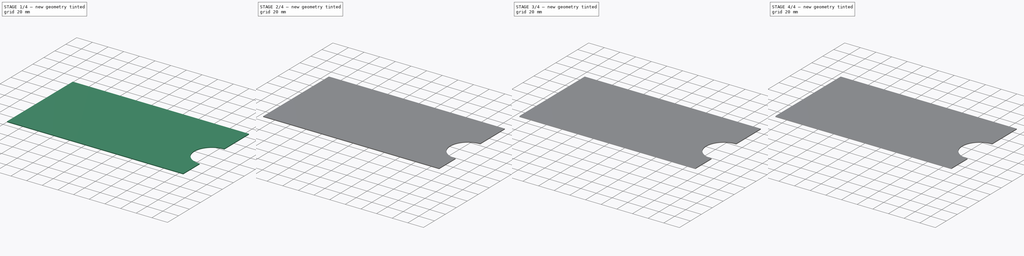
[diagram: build sequence overview — one tinted view per stage of 4, left to right]
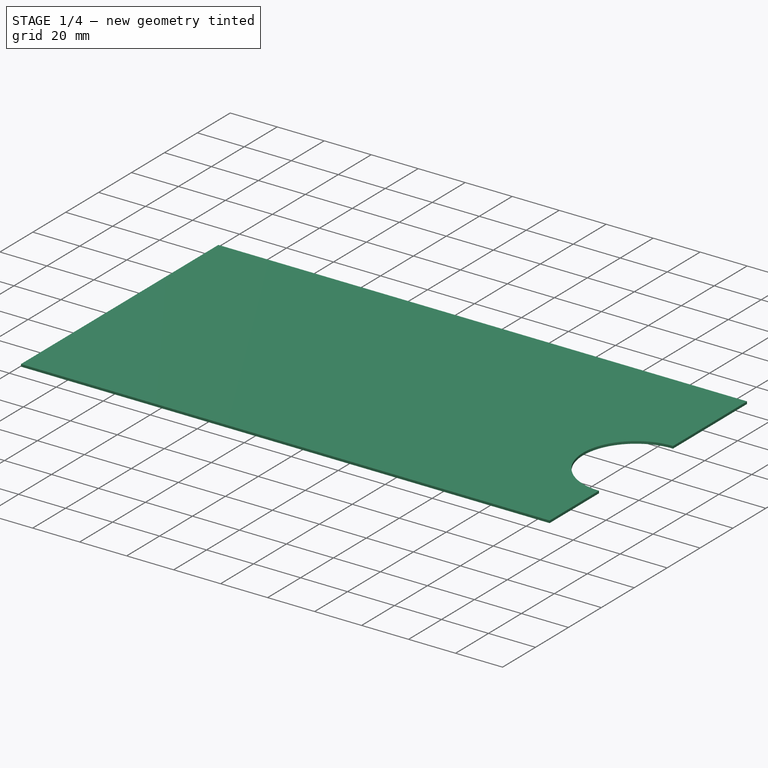
[diagram: stage 1 of 4 — iso view after this stage's code; geometry added in this stage tinted green]
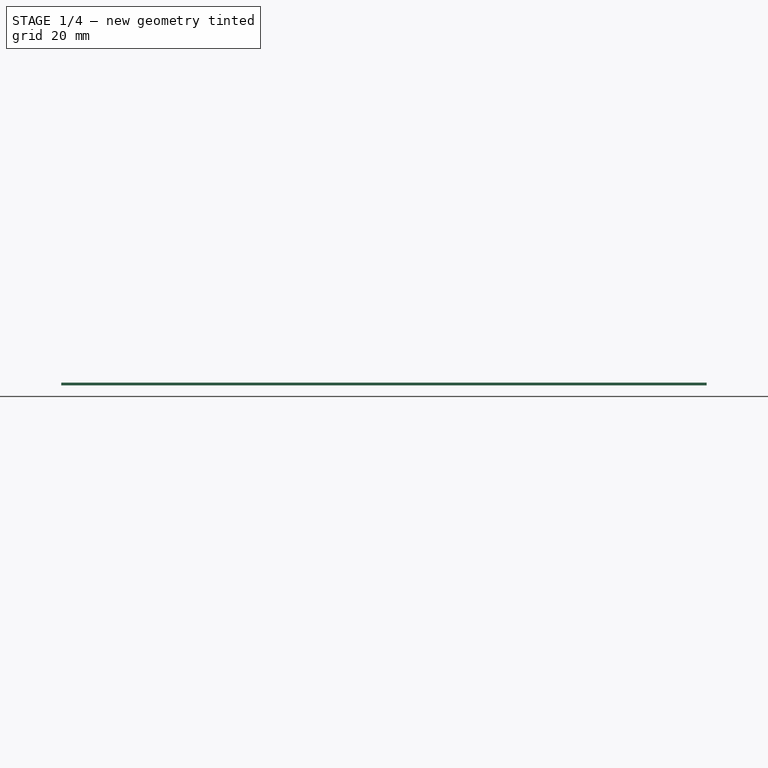
[diagram: stage 1 of 4 — front view after this stage's code; geometry added in this stage tinted green]
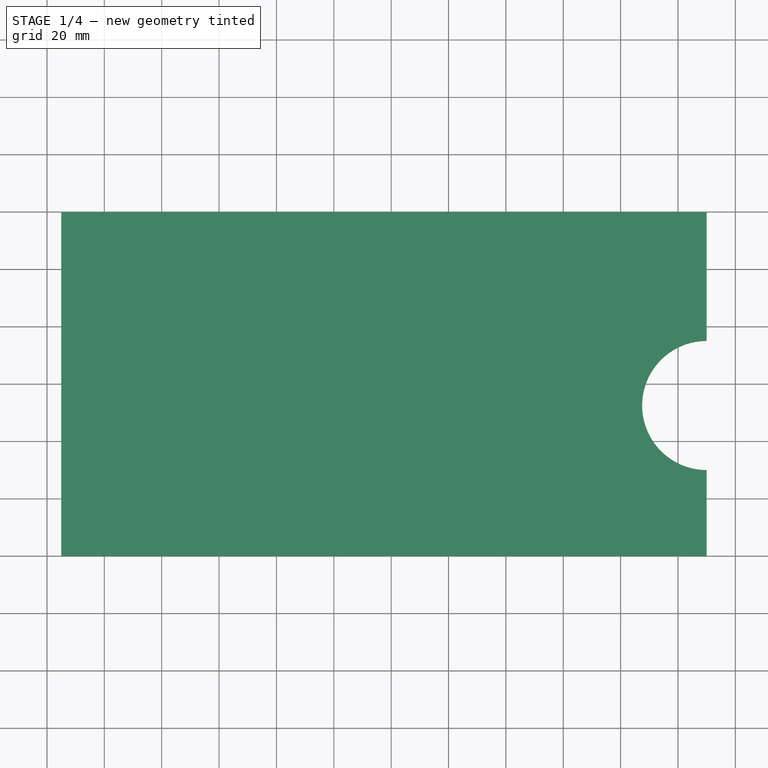
[diagram: stage 1 of 4 — top view after this stage's code; geometry added in this stage tinted green]
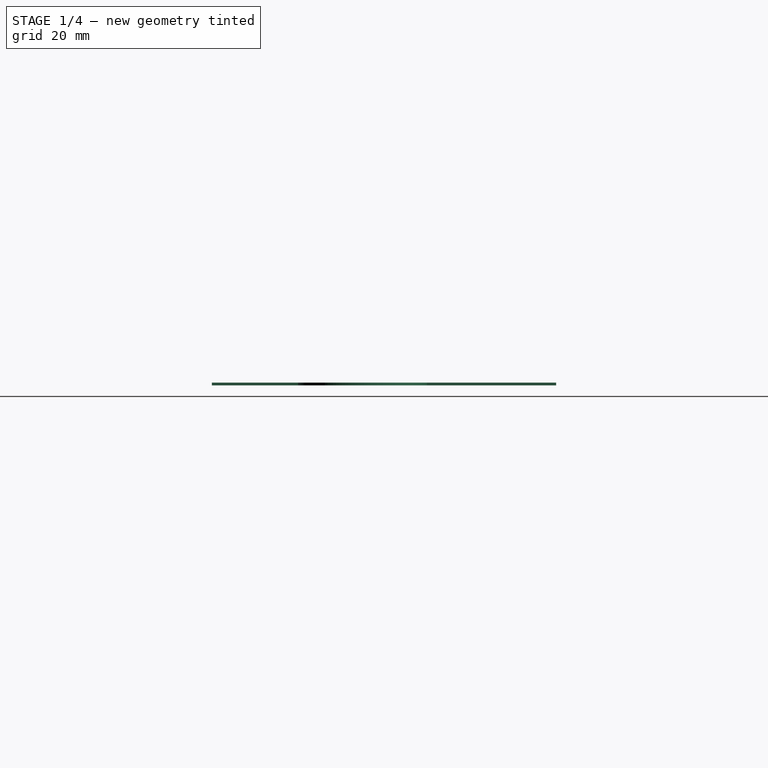
[diagram: stage 1 of 4 — right view after this stage's code; geometry added in this stage tinted green]
FCSTD DOCUMENT  (FreeCAD 1.0R39109 (Git))
Label: waterCollector
License: All rights reserved
LicenseURL: https://en.wikipedia.org/wiki/All_rights_reserved
objects: PartDesign::SubtractiveBox×3, PartDesign::Pad×2, PartDesign::Fillet×2, Sketcher::SketchObject×1, PartDesign::Thickness×1, PartDesign::Chamfer×1, PartDesign::Body×1
note: 30 computed .brp shape members not serialized (recipe doc carries the construction recipe); baked Part::Feature solids carry a one-line shape summary decoded from their .brp

FEATURE [Sketcher::SketchObject] Sketch
  ArcFitTolerance = 1e-06
  AttachmentSupport = -> [XY_Plane]
  FullyConstrained = false
  MakeInternals = false
  MapMode = 5
  sketch-geometry (54):
    g0: LineSegment StartX=0 StartY=0 StartZ=0 EndX=125 EndY=0 EndZ=0
    g1: LineSegment StartX=125 StartY=280 StartZ=0 EndX=0 EndY=280 EndZ=0
    g2: LineSegment StartX=0 StartY=280 StartZ=0 EndX=0 EndY=0 EndZ=0
    g3: LineSegment StartX=125 StartY=280 StartZ=0 EndX=125 EndY=190 EndZ=0
    g4: LineSegment StartX=125 StartY=190 StartZ=0 EndX=350 EndY=190 EndZ=0
    g5: LineSegment StartX=350 StartY=280 StartZ=0 EndX=125 EndY=280 EndZ=0
    g6: LineSegment StartX=350 StartY=190 StartZ=0 EndX=622.431 EndY=190 EndZ=0
    g7: LineSegment StartX=622.431 StartY=190 StartZ=0 EndX=622.431 EndY=280 EndZ=0
    g8: LineSegment StartX=622.431 StartY=280 StartZ=0 EndX=350 EndY=280 EndZ=0
    g9: LineSegment StartX=622.431 StartY=280 StartZ=0 EndX=622.431 EndY=0 EndZ=0
    g10: LineSegment StartX=622.431 StartY=0 StartZ=0 EndX=750 EndY=0 EndZ=0
    g11: LineSegment StartX=750 StartY=0 StartZ=0 EndX=750 EndY=280 EndZ=0
    g12: LineSegment StartX=750 StartY=280 StartZ=0 EndX=622.431 EndY=280 EndZ=0
    g13: LineSegment StartX=140 StartY=215 StartZ=0 EndX=140 EndY=205 EndZ=0
    g14: LineSegment StartX=140 StartY=205 StartZ=0 EndX=150 EndY=205 EndZ=0
    g15: LineSegment StartX=150 StartY=205 StartZ=0 EndX=150 EndY=215 EndZ=0
    g16: LineSegment StartX=150 StartY=215 StartZ=0 EndX=140 EndY=215 EndZ=0
    g17: LineSegment StartX=140 StartY=265 StartZ=0 EndX=140 EndY=255 EndZ=0
    g18: LineSegment StartX=140 StartY=255 StartZ=0 EndX=150 EndY=255 EndZ=0
    g19: LineSegment StartX=150 StartY=255 StartZ=0 EndX=150 EndY=265 EndZ=0
    g20: LineSegment StartX=150 StartY=265 StartZ=0 EndX=140 EndY=265 EndZ=0
    g21: LineSegment StartX=325 StartY=265 StartZ=0 EndX=325 EndY=255 EndZ=0
    g22: LineSegment StartX=325 StartY=255 StartZ=0 EndX=335 EndY=255 EndZ=0
    g23: LineSegment StartX=335 StartY=255 StartZ=0 EndX=335 EndY=265 EndZ=0
    g24: LineSegment StartX=335 StartY=265 StartZ=0 EndX=325 EndY=265 EndZ=0
    g25: LineSegment StartX=303.001 StartY=215 StartZ=0 EndX=303.001 EndY=205 EndZ=0
    g26: LineSegment StartX=303.001 StartY=205 StartZ=0 EndX=313.001 EndY=205 EndZ=0
    g27: LineSegment StartX=313.001 StartY=205 StartZ=0 EndX=313.001 EndY=215 EndZ=0
    g28: LineSegment StartX=313.001 StartY=215 StartZ=0 EndX=303.001 EndY=215 EndZ=0
    g29: LineSegment StartX=372.852 StartY=269.081 StartZ=0 EndX=372.852 EndY=254.135 EndZ=0
    g30: LineSegment StartX=372.852 StartY=254.135 StartZ=0 EndX=387.798 EndY=254.135 EndZ=0
    g31: LineSegment StartX=387.798 StartY=254.135 StartZ=0 EndX=387.798 EndY=269.081 EndZ=0
    g32: LineSegment StartX=387.798 StartY=269.081 StartZ=0 EndX=372.852 EndY=269.081 EndZ=0
    g33: LineSegment StartX=381.659 StartY=210.365 StartZ=0 EndX=381.659 EndY=196.22 EndZ=0
    g34: LineSegment StartX=381.659 StartY=196.22 StartZ=0 EndX=394.203 EndY=196.22 EndZ=0
    g35: LineSegment StartX=394.203 StartY=196.22 StartZ=0 EndX=394.203 EndY=210.365 EndZ=0
    g36: LineSegment StartX=394.203 StartY=210.365 StartZ=0 EndX=381.659 EndY=210.365 EndZ=0
    g37: LineSegment StartX=588.5 StartY=269.348 StartZ=0 EndX=588.5 EndY=253.335 EndZ=0
    g38: LineSegment StartX=588.5 StartY=253.335 StartZ=0 EndX=600.51 EndY=253.335 EndZ=0
    g39: LineSegment StartX=600.51 StartY=253.335 StartZ=0 EndX=600.51 EndY=269.348 EndZ=0
    g40: LineSegment StartX=600.51 StartY=269.348 StartZ=0 EndX=588.5 EndY=269.348 EndZ=0
    g41: LineSegment StartX=589.834 StartY=205.561 StartZ=0 EndX=589.834 EndY=194.886 EndZ=0
    g42: LineSegment StartX=589.834 StartY=194.886 StartZ=0 EndX=601.844 EndY=194.886 EndZ=0
    g43: LineSegment StartX=601.844 StartY=194.886 StartZ=0 EndX=601.844 EndY=205.561 EndZ=0
    g44: LineSegment StartX=601.844 StartY=205.561 StartZ=0 EndX=589.834 EndY=205.561 EndZ=0
    g45: LineSegment StartX=350 StartY=235 StartZ=0 EndX=350 EndY=280 EndZ=0
    g46: LineSegment StartX=350 StartY=190 StartZ=0 EndX=125 EndY=190 EndZ=0
    g47: LineSegment StartX=125 StartY=190 StartZ=0 EndX=125 EndY=160 EndZ=0
    g48: LineSegment StartX=125 StartY=160 StartZ=0 EndX=350 EndY=160 EndZ=0
    g49: LineSegment StartX=350 StartY=160 StartZ=0 EndX=350 EndY=190 EndZ=0
    g50: LineSegment StartX=125 StartY=160 StartZ=0 EndX=125 EndY=0 EndZ=0
    g51: LineSegment [constr] StartX=350 StartY=280 StartZ=0 EndX=350 EndY=190 EndZ=0
    g52: ArcOfCircle CenterX=350 CenterY=212.5 CenterZ=0 NormalX=0 NormalY=0 NormalZ=1 AngleXU=0 Radius=22.5 StartAngle=1.5708 EndAngle=4.71239
    g53: ArcOfCircle CenterX=350 CenterY=212.5 CenterZ=0 NormalX=0 NormalY=0 NormalZ=1 AngleXU=0 Radius=22.5 StartAngle=4.71239 EndAngle=7.85398
  constraints (134):
    c: Coincident(g1,g2)
    c: Coincident(g2,g0)
    c: Horizontal(g0)
    c: Horizontal(g1)
    c: Vertical(g2)
    c: Coincident(g0,g-1)
    c: Coincident(g45,g5)
    c: Coincident(g5,g3)
    c: Vertical(g3)
    c: Horizontal(g4)
    c: Horizontal(g5)
    c: Coincident(g6,g7)
    c: Coincident(g7,g8)
    c: Vertical(g7)
    c: Horizontal(g6)
    c: Horizontal(g8)
    c: Coincident(g9,g10)
    c: Coincident(g10,g11)
    c: Coincident(g11,g12)
    c: Coincident(g12,g9)
    c: Vertical(g9)
    c: Vertical(g11)
    c: Horizontal(g10)
    c: Horizontal(g12)
    c: Coincident(g9,g7)
    c: PointOnObject(g10,g-1)
    c: Distance(g6,g8) = 90
    c: Distance(g11,g11) = 280
    c: DistanceX(g45,g11) = 400
    c: DistanceX(g1,g45) = 350
    c: Coincident(g13,g14)
    c: Coincident(g14,g15)
    c: Coincident(g15,g16)
    c: Coincident(g16,g13)
    c: Vertical(g13)
    c: Vertical(g15)
    c: Horizontal(g14)
    c: Horizontal(g16)
    c: Coincident(g17,g18)
    c: Coincident(g18,g19)
    c: Coincident(g19,g20)
    c: Coincident(g20,g17)
    c: Vertical(g19)
    c: Horizontal(g18)
    c: Horizontal(g20)
    c: Coincident(g21,g22)
    c: Coincident(g22,g23)
    c: Coincident(g23,g24)
    c: Coincident(g24,g21)
    c: Vertical(g21)
    c: Vertical(g23)
    c: Horizontal(g22)
    c: Coincident(g25,g26)
    c: Coincident(g26,g27)
    c: Coincident(g27,g28)
    c: Coincident(g28,g25)
    c: Vertical(g25)
    c: Vertical(g27)
    c: Horizontal(g28)
    c: Coincident(g29,g30)
    c: Coincident(g30,g31)
    c: Coincident(g31,g32)
    c: Coincident(g32,g29)
    c: Vertical(g29)
    c: Vertical(g31)
    c: Horizontal(g30)
    c: Horizontal(g32)
    c: Coincident(g33,g34)
    c: Coincident(g34,g35)
    c: Coincident(g35,g36)
    c: Coincident(g36,g33)
    c: Vertical(g33)
    c: Vertical(g35)
    c: Horizontal(g34)
    c: Horizontal(g36)
    c: Coincident(g37,g38)
    c: Coincident(g38,g39)
    c: Coincident(g39,g40)
    c: Coincident(g40,g37)
    c: Vertical(g37)
    c: Vertical(g39)
    c: Horizontal(g38)
    c: Horizontal(g40)
    c: Coincident(g41,g42)
    c: Coincident(g42,g43)
    c: Coincident(g43,g44)
    c: Coincident(g44,g41)
    c: Vertical(g41)
    c: Vertical(g43)
    c: Horizontal(g42)
    c: Horizontal(g44)
    c: Equal(g20,g19)
    c: Equal(g16,g18)
    c: Equal(g16,g15)
    c: Equal(g15,g24)
    c: Equal(g24,g21)
    c: Equal(g25,g28)
    c: Equal(g28,g22)
    c: Tangent(g14,g26)
    c: Tangent(g13,g17)
    c: Tangent(g20,g24)
    c: DistanceY(g19,g19) = 10
    c: Distance(g21,g5) = 15
    c: Distance(g4,g26) = 15
    c: Vertical(g45)
    c: Coincident(g46,g47)
    c: Coincident(g47,g48)
    c: Coincident(g48,g49)
    c: Coincident(g49,g46)
    c: Horizontal(g48)
    c: Vertical(g47)
    c: Vertical(g49)
    c: Coincident(g46,g6)
    c: DistanceY(g49,g49) = 30
    c: Coincident(g50,g47)
    c: Coincident(g50,g0)
    c: Vertical(g50)
    c: Coincident(g4,g6)
    c: Coincident(g3,g4)
    c: Coincident(g1,g3)
    c: Coincident(g46,g3)
    c: Distance(g13,g3) = 15
    c: Coincident(g5,g8)
    c: DistanceX(g5,g5) = 225
    c: Coincident(g51,g5)
    c: Coincident(g51,g4)
    c: Vertical(g51)
    c: PointOnObject(g52,g51)
    c: Coincident(g52,g4)
    c: Coincident(g53,g52)
    c: Coincident(g53,g4)
    c: PointOnObject(g53,g51)
    c: Coincident(g45,g52)
    c: Diameter(g53) = 45
FEATURE [PartDesign::Pad] Pad
  Direction = (0,0,1)
  Length = 1
  Length2 = 10
  Profile = -> Sketch [Edge1,Edge21,Edge18,Edge19,Edge5,Edge4,Edge13]
  ReferenceAxis = -> Sketch [N_Axis]
  Refine = true
  Suppressed = false
  Type = 0
FEATURE [PartDesign::Thickness] Thickness
  Base = -> Pad [Face7]
  BaseFeature = -> Pad
  Intersection = false
  Join = 0
  Mode = 0
  Refine = true
  Reversed = true
  SupportTransform = false
  Suppressed = false
  Value = 0
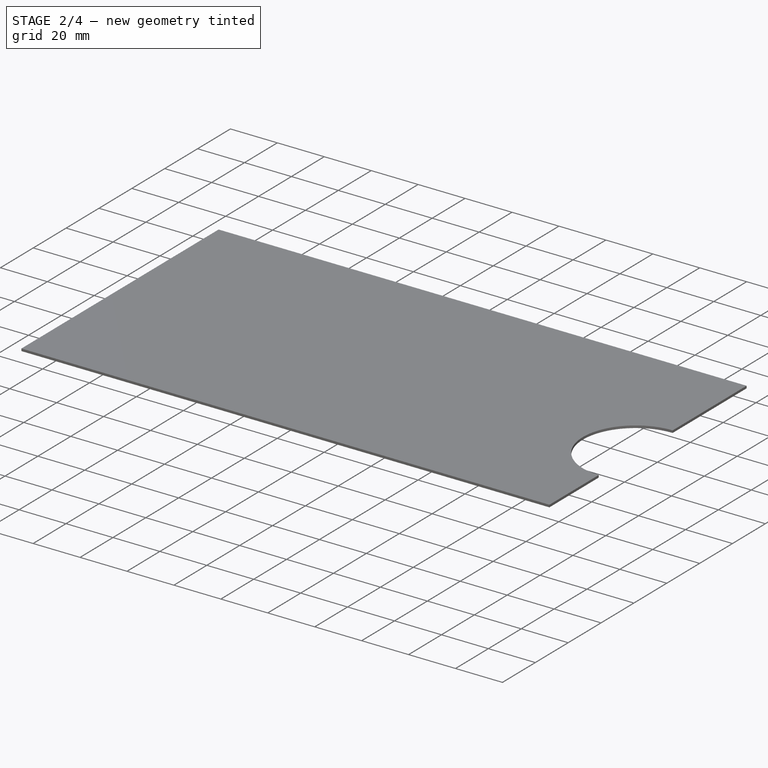
[diagram: stage 2 of 4 — iso view after this stage's code; geometry added in this stage tinted green]
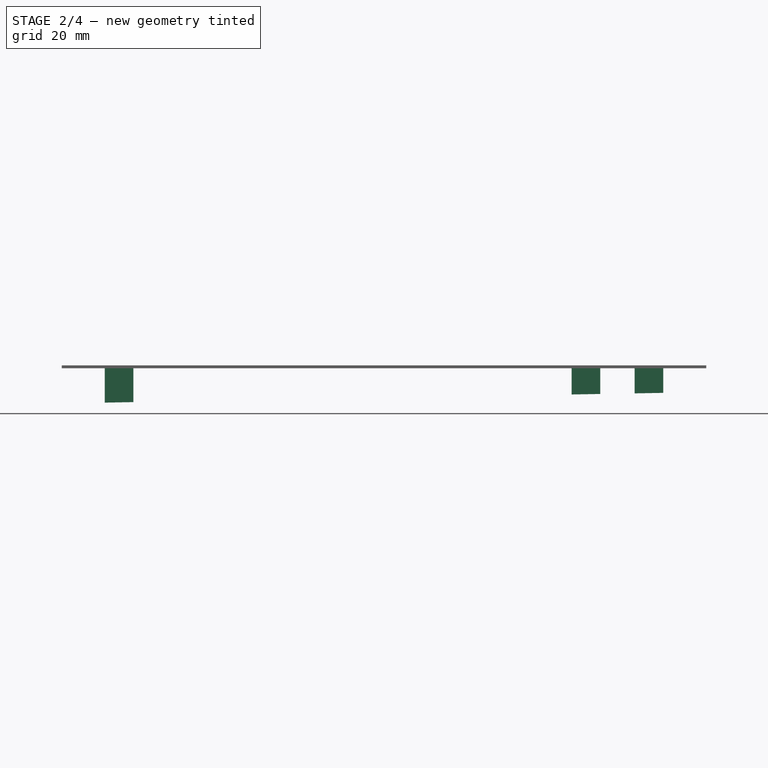
[diagram: stage 2 of 4 — front view after this stage's code; geometry added in this stage tinted green]
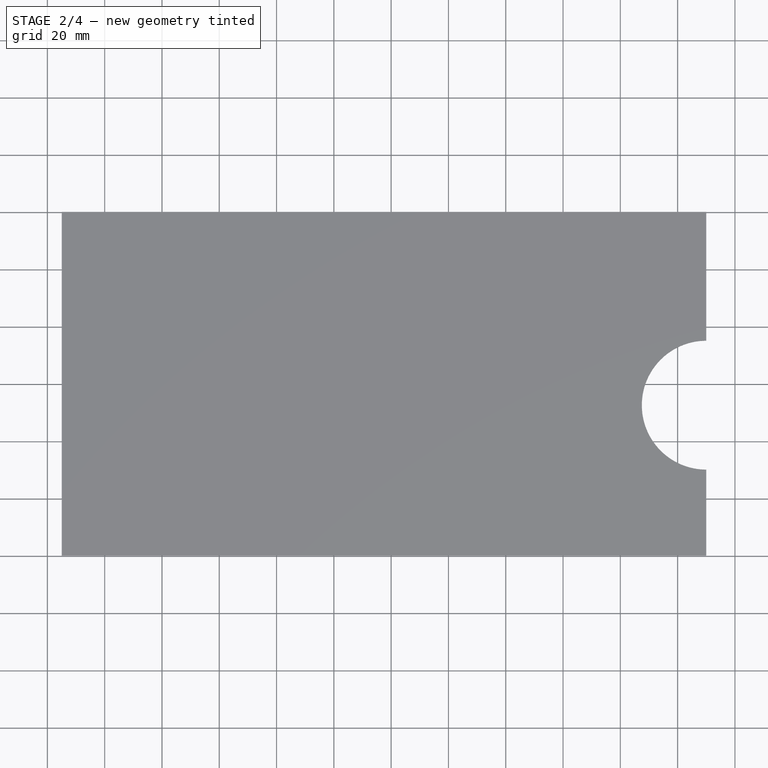
[diagram: stage 2 of 4 — top view after this stage's code; geometry added in this stage tinted green]
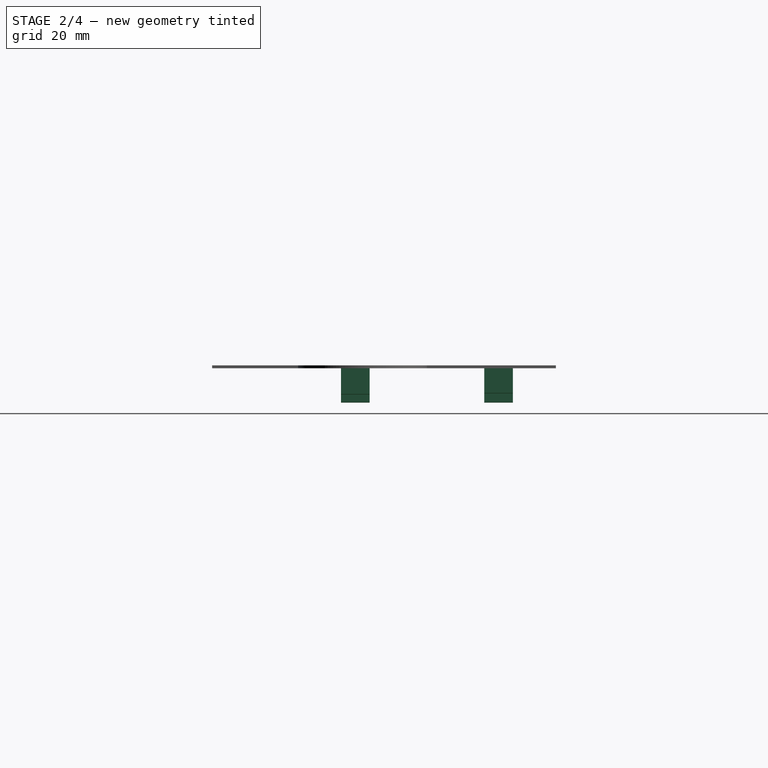
[diagram: stage 2 of 4 — right view after this stage's code; geometry added in this stage tinted green]
FEATURE [PartDesign::Pad] Pad001  label="columns"
  BaseFeature = -> Thickness
  Direction = (0,0,1)
  Length = 12
  Length2 = 10
  Profile = -> Sketch [Edge28,Edge29,Edge27,Edge26,Edge24,Edge25,Edge22,Edge23,Edge33,Edge32,Edge30,Edge31,Edge37,Edge36,Edge35,Edge34]
  ReferenceAxis = -> Sketch [N_Axis]
  Refine = true
  Reversed = true
  Suppressed = false
  Type = 0
FEATURE [PartDesign::SubtractiveBox] Box
  AttacherType = Attacher::AttachEngine3D
  AttachmentOffset = pos=(0,0,-100) rot=(0,0,1;3.12414rad)
  AttachmentSupport = -> [Pad001]
  BaseFeature = -> Pad001
  Height = 100
  Length = 245
  MapMode = 7
  Placement = pos=(140,165,-12) rot=(0.999924,0.008726,0.008726;4.71231rad)
  Refine = true
  Suppressed = false
  Width = 10
  expr: .AttachmentOffset.Base.z = -Height
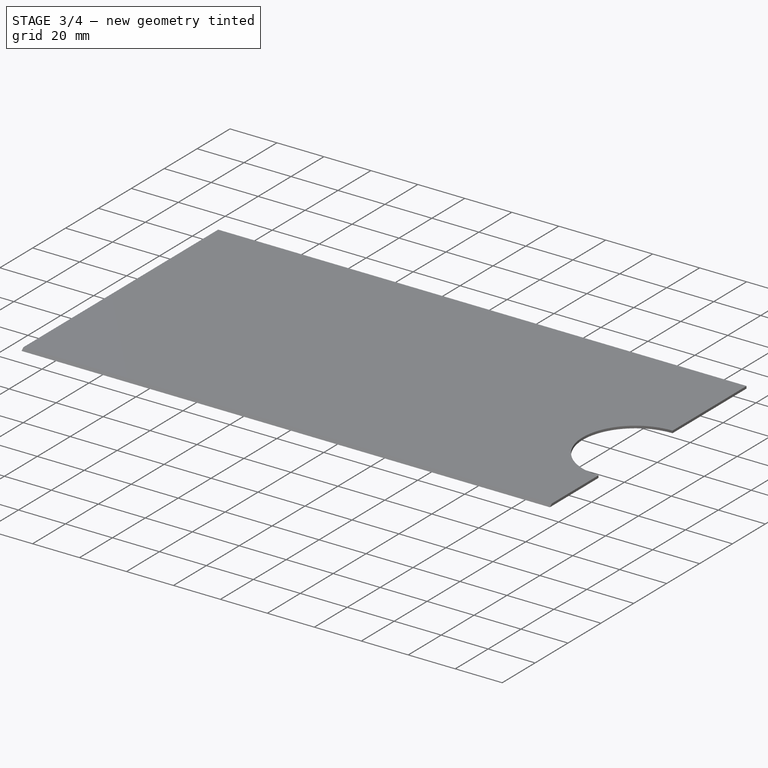
[diagram: stage 3 of 4 — iso view after this stage's code; geometry added in this stage tinted green]
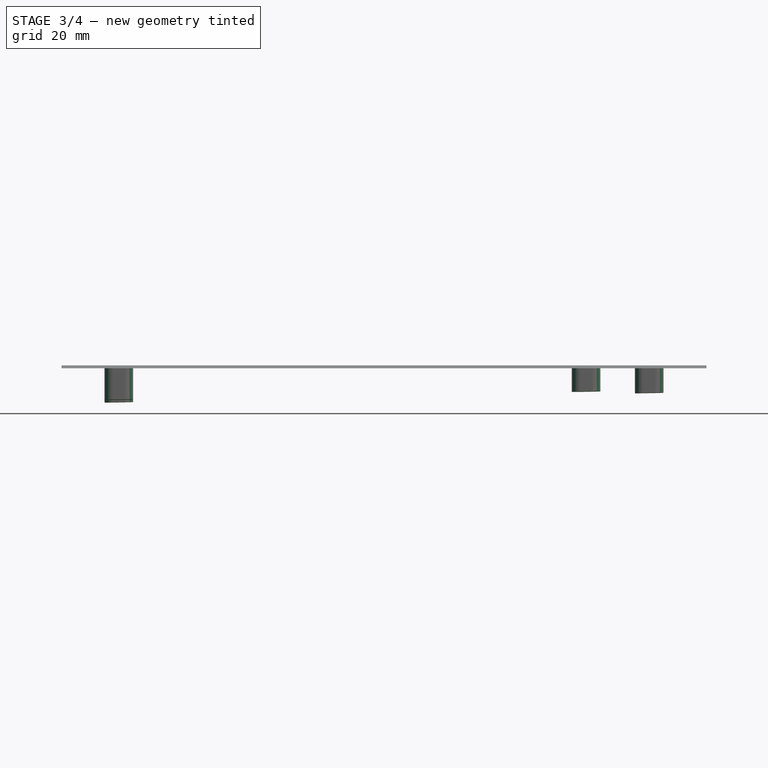
[diagram: stage 3 of 4 — front view after this stage's code; geometry added in this stage tinted green]
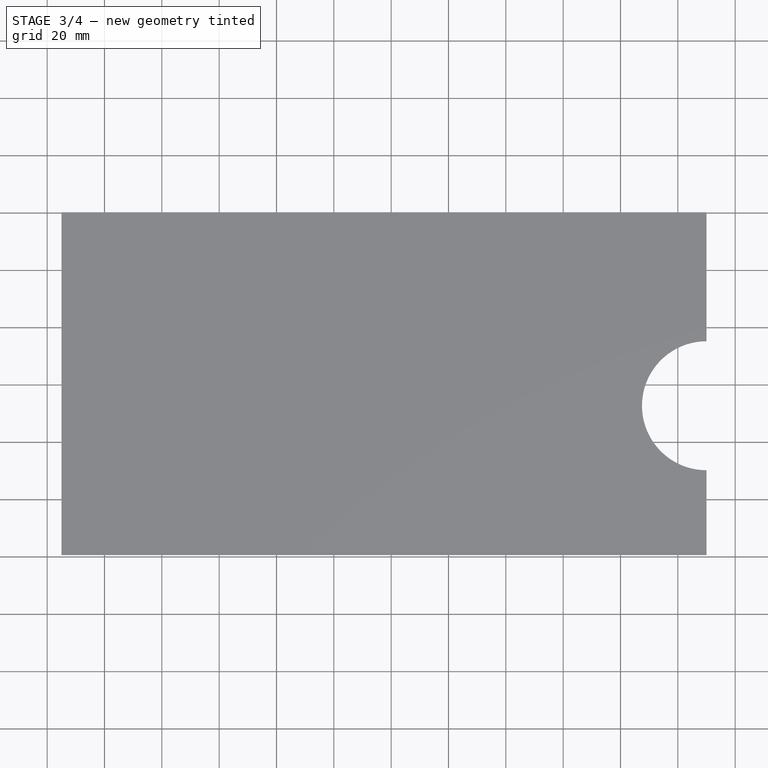
[diagram: stage 3 of 4 — top view after this stage's code; geometry added in this stage tinted green]
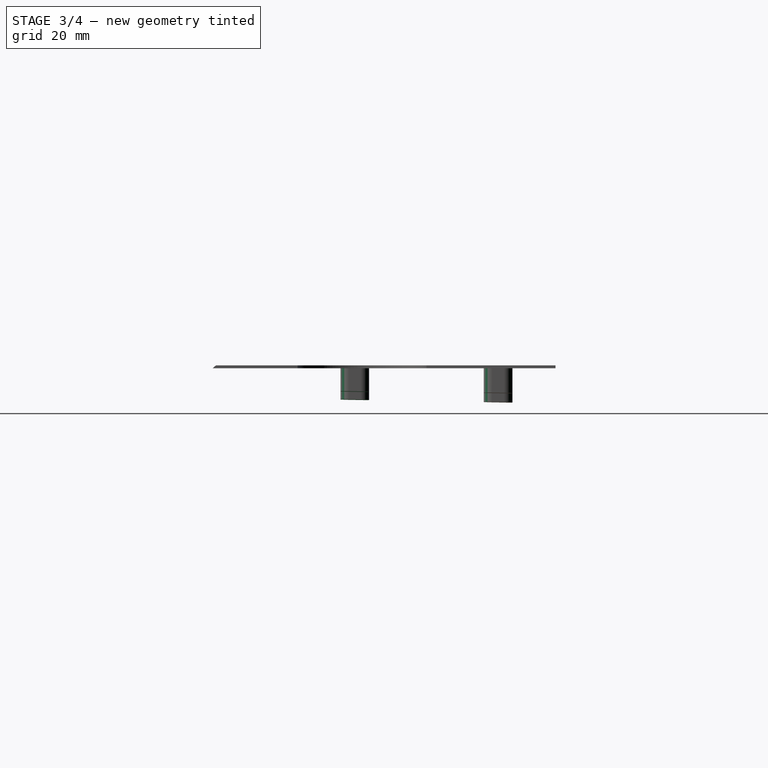
[diagram: stage 3 of 4 — right view after this stage's code; geometry added in this stage tinted green]
FEATURE [PartDesign::SubtractiveBox] Box001
  AttacherType = Attacher::AttachEngine3D
  AttachmentOffset = pos=(0,0,-245) rot=(0,0,-1;1.55334rad)
  AttachmentSupport = -> [Box]
  BaseFeature = -> Box
  Height = 245
  Length = 10
  MapMode = 7
  Placement = pos=(384.963,265,-7.72416) rot=(0.713237,-0.006224,-0.700896;3.12936rad)
  Refine = true
  Suppressed = false
  Width = 72
  expr: .AttachmentOffset.Base.z = -Height
FEATURE [PartDesign::SubtractiveBox] Box002
  AttacherType = Attacher::AttachEngine3D
  AttachmentOffset = pos=(-2,-3,0) rot=(0,0,1;0.698132rad)
  AttachmentSupport = -> [Box001]
  BaseFeature = -> Box001
  Height = 225
  Length = 10
  MapMode = 7
  Placement = pos=(125,158,-2) rot=(0.671543,0.313146,0.671543;2.53465rad)
  Refine = true
  Suppressed = false
  Width = 10
FEATURE [PartDesign::Fillet] Fillet
  Base = -> Box002 [Edge61,Edge63,Edge59,Edge45,Edge43,Edge47,Edge56,Edge51,Edge53,Edge35,Edge37,Edge40,Edge64,Edge48,Edge39,Edge55]
  BaseFeature = -> Box002
  Placement = pos=(125,158,-2) rot=(0.671543,0.313146,0.671543;2.53465rad)
  Radius = 3
  Refine = true
  SupportTransform = false
  Suppressed = false
  UseAllEdges = false
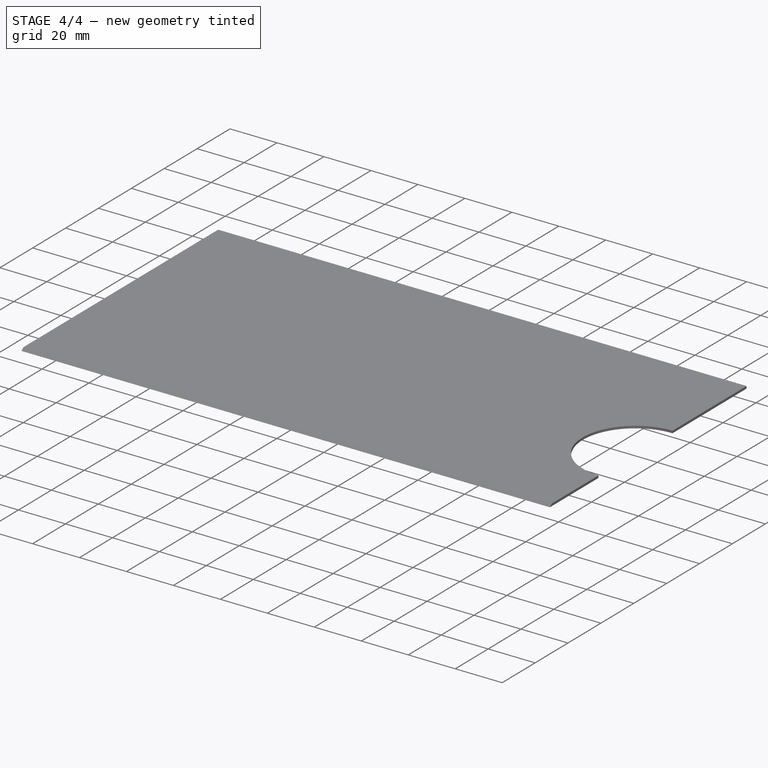
[diagram: stage 4 of 4 — iso view after this stage's code; geometry added in this stage tinted green]
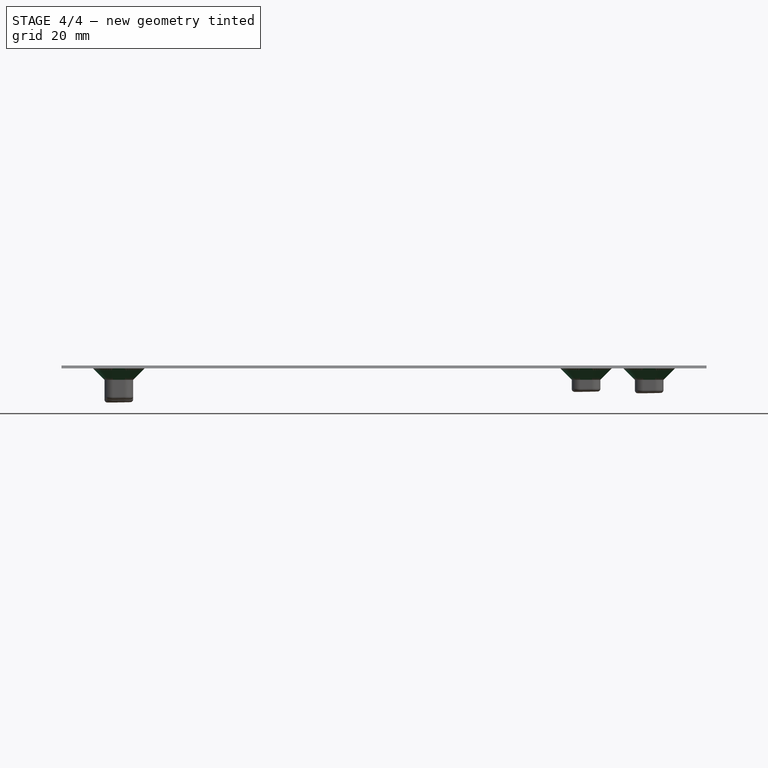
[diagram: stage 4 of 4 — front view after this stage's code; geometry added in this stage tinted green]
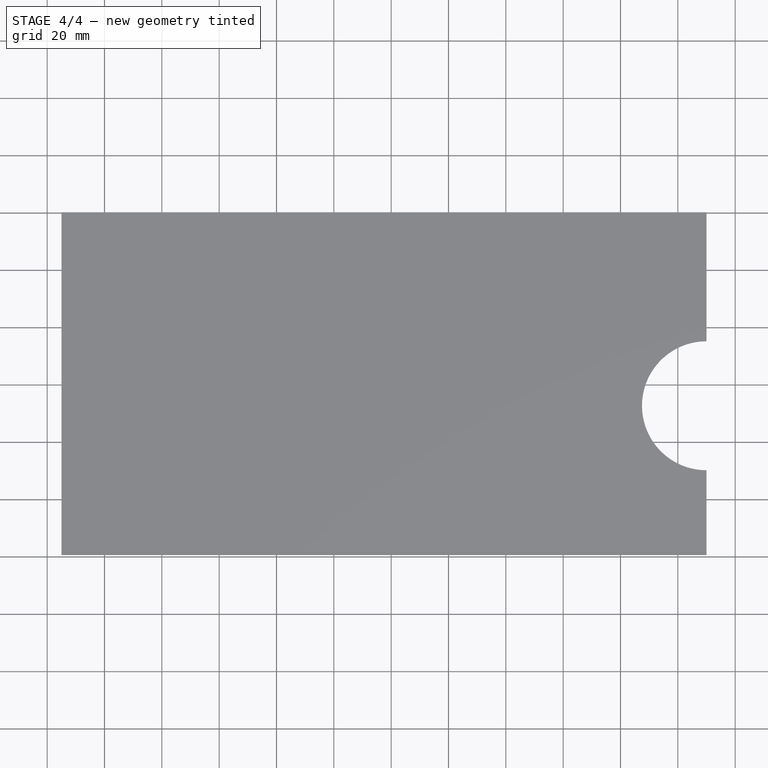
[diagram: stage 4 of 4 — top view after this stage's code; geometry added in this stage tinted green]
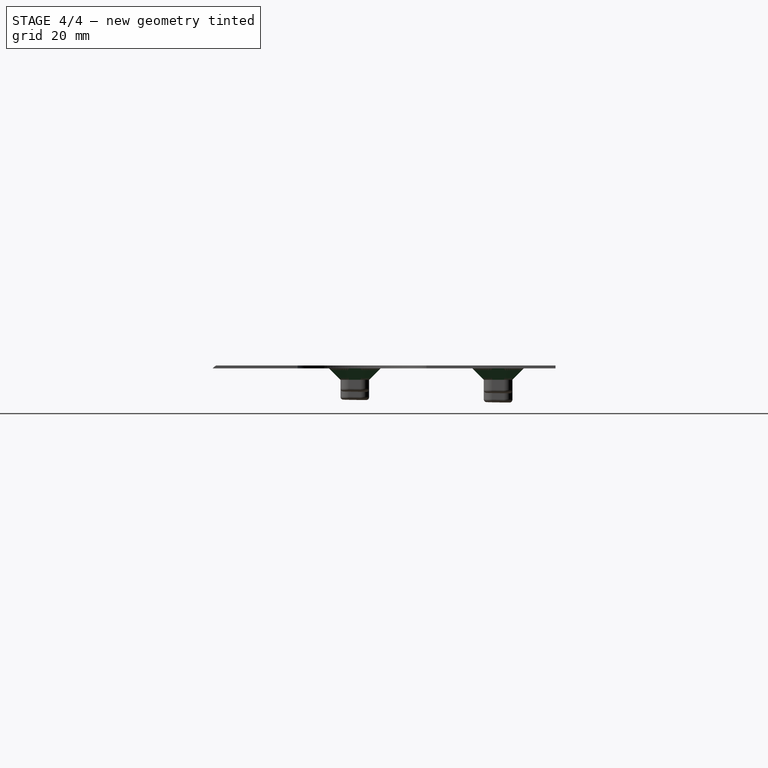
[diagram: stage 4 of 4 — right view after this stage's code; geometry added in this stage tinted green]
FEATURE [PartDesign::Chamfer] Chamfer
  Angle = 45
  Base = -> Fillet [Edge38,Edge19,Edge8,Edge30]
  BaseFeature = -> Fillet
  ChamferType = 0
  FlipDirection = false
  Placement = pos=(125,158,-2) rot=(0.671543,0.313146,0.671543;2.53465rad)
  Refine = true
  Size = 4
  Size2 = 1
  SupportTransform = false
  Suppressed = false
  UseAllEdges = false
FEATURE [PartDesign::Fillet] Fillet001
  Base = -> Chamfer [Edge123,Edge164,Edge148,Edge132]
  BaseFeature = -> Chamfer
  Placement = pos=(125,158,-2) rot=(0.671543,0.313146,0.671543;2.53465rad)
  Radius = 1
  Refine = true
  SupportTransform = false
  Suppressed = false
  UseAllEdges = false
FEATURE [PartDesign::Body] Body
  AllowCompound = false
  Group = -> [Sketch,Pad,Thickness,Pad001,Box,Box001,Box002,Fillet,Chamfer,Fillet001]
  Origin = -> Origin
  Tip = -> Fillet001
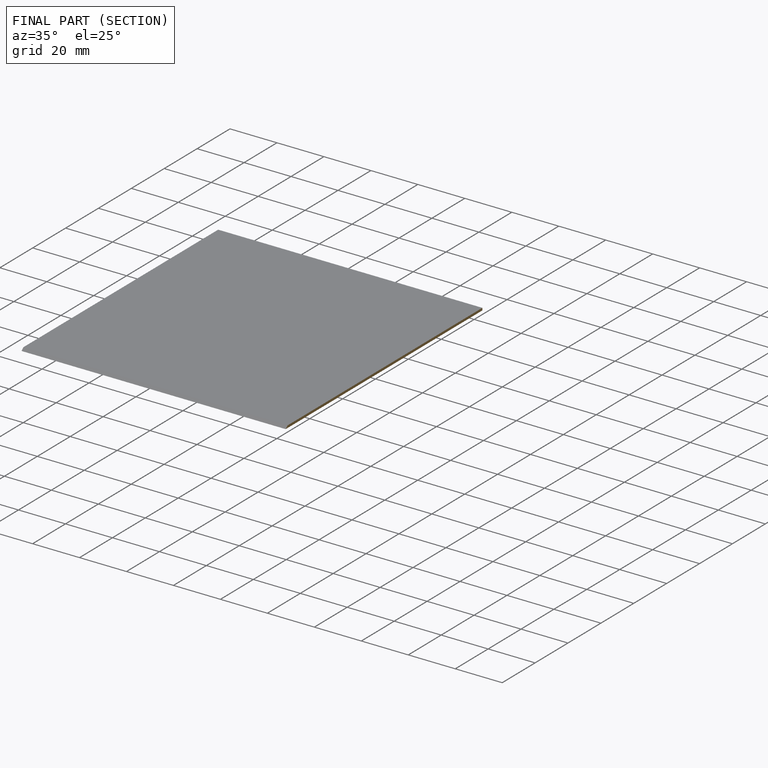
[diagram: finished part — half-section view (interior)]
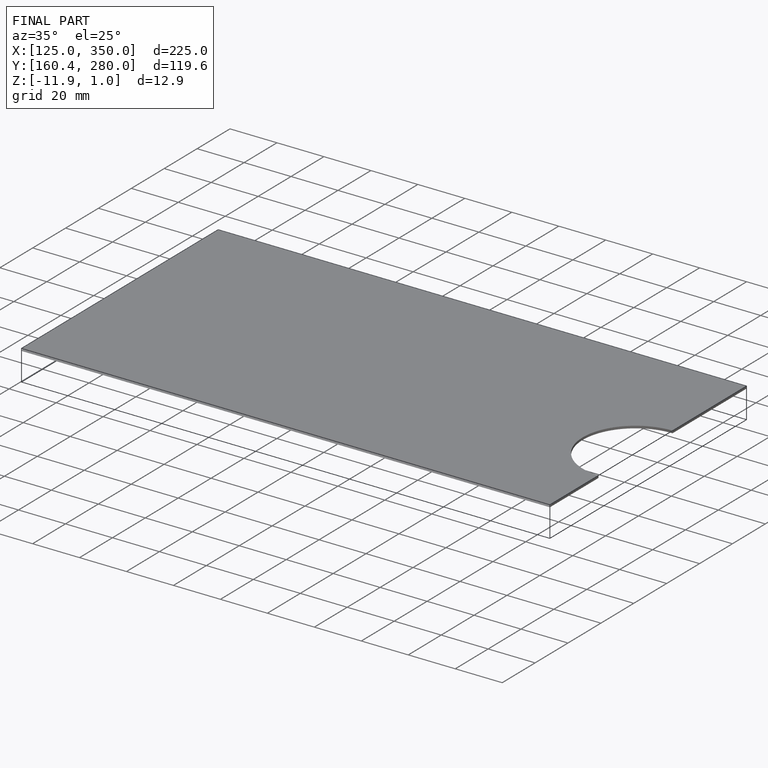
[diagram: finished part — iso view with bounding-box wireframe]
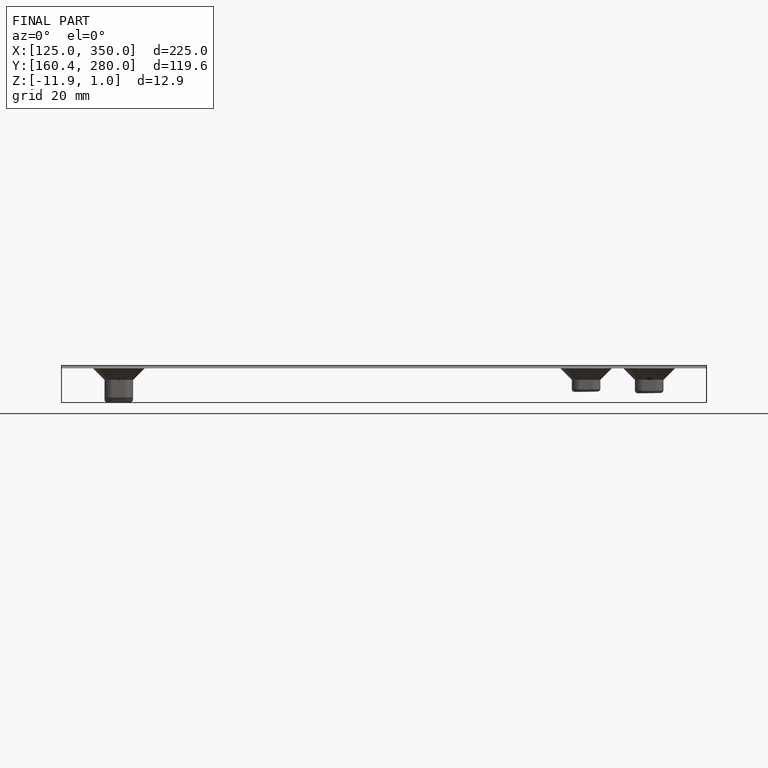
[diagram: finished part — front view with bounding-box wireframe]
